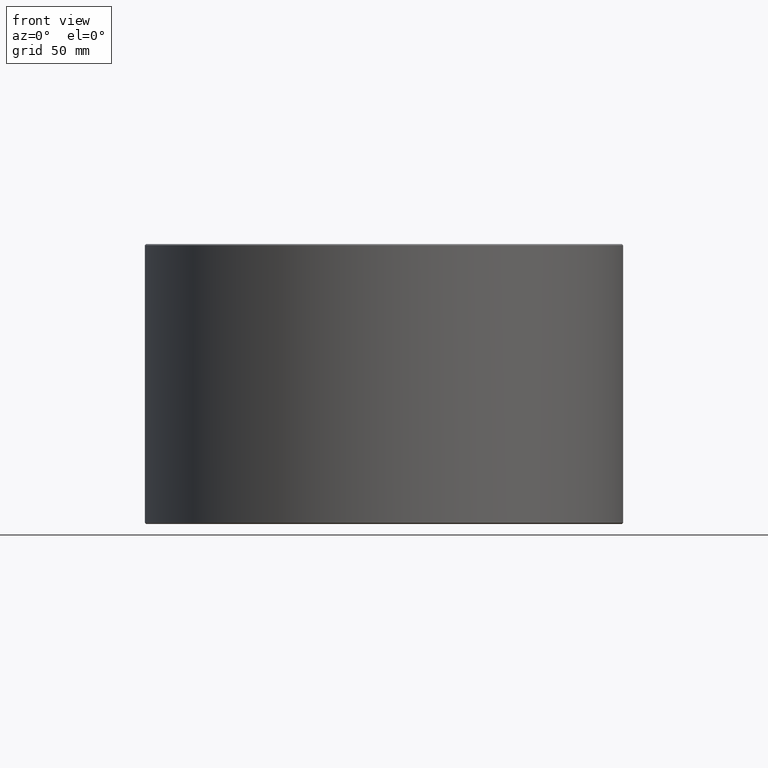
[diagram: clean part render]
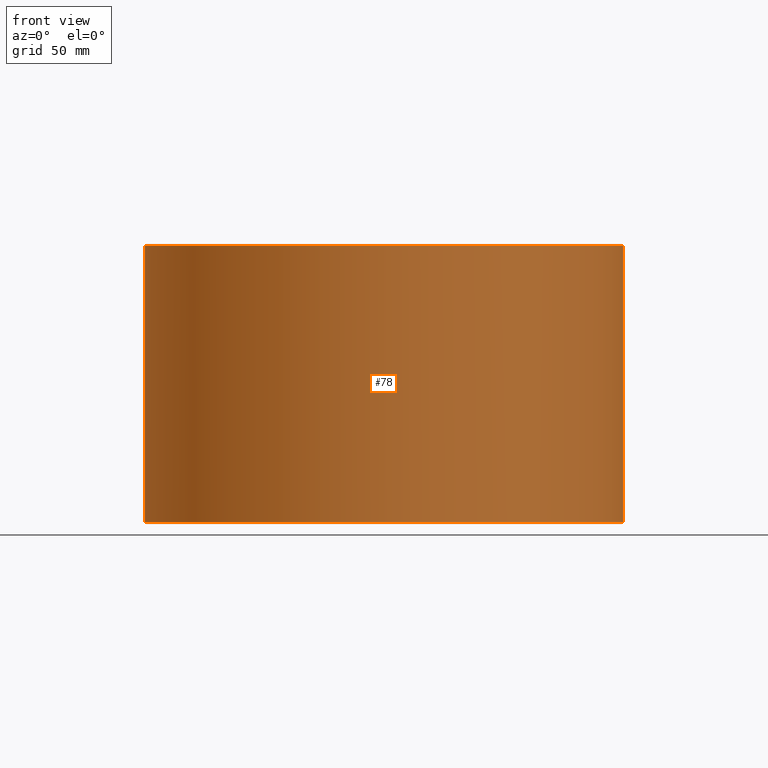
[diagram: same view with one face highlighted and labeled with its STEP entity id]
A machine part, front view. The second image highlights one B-rep face of the part: STEP entity #78.
In plain terms, the highlighted cylindrical surface (partial cylindrical patch) has radius 102.5 mm, axis along (0, -0, 1).
Its self-contained STEP definition (entity closure, byte-faithful):
#78=ADVANCED_FACE('',(#98),#99,.T.);
#98=FACE_OUTER_BOUND('',#130,.T.);
#99=CYLINDRICAL_SURFACE('',#131,102.5);
#130=EDGE_LOOP('',(#177,#178,#179,#180));
#131=AXIS2_PLACEMENT_3D('',#181,#182,#183);
#177=ORIENTED_EDGE('',*,*,#291,.F.);
#178=ORIENTED_EDGE('',*,*,#290,.F.);
#179=ORIENTED_EDGE('',*,*,#292,.F.);
#180=ORIENTED_EDGE('',*,*,#293,.T.);
#181=CARTESIAN_POINT('',(3.43859627909202E-014,-3.92324924818481E-014,60.0));
#182=DIRECTION('',(5.48707263966372E-016,-6.09939603923743E-016,1.0));
#183=DIRECTION('',(-1.0,-3.10522299689076E-016,5.48707263966372E-016));
#290=EDGE_CURVE('',#336,#332,#338,.T.);
#291=EDGE_CURVE('',#332,#339,#340,.T.);
#292=EDGE_CURVE('',#341,#336,#342,.T.);
#293=EDGE_CURVE('',#341,#339,#343,.T.);
#332=VERTEX_POINT('',#398);
#336=VERTEX_POINT('',#403);
#338=CIRCLE('',#406,102.5);
#339=VERTEX_POINT('',#407);
#340=LINE('',#408,#409);
#341=VERTEX_POINT('',#410);
#342=LINE('',#411,#412);
#343=CIRCLE('',#413,102.5);
#398=CARTESIAN_POINT('',(102.5,-5.62479928884409E-014,119.5));
#403=CARTESIAN_POINT('',(-102.5,-1.07237623265661E-013,119.5));
#406=AXIS2_PLACEMENT_3D('',#482,#483,#484);
#407=CARTESIAN_POINT('',(102.5,1.71170797645324E-014,0.499999999999953));
#408=CARTESIAN_POINT('',(102.5,-1.99565864549782E-014,59.9999999999999));
#409=VECTOR('',#485,1.0);
#410=CARTESIAN_POINT('',(-102.5,-3.5280120705911E-014,0.500000000000059));
#411=CARTESIAN_POINT('',(-102.5,-3.5280120705911E-014,0.500000000000059));
#412=VECTOR('',#486,10.0);
#413=AXIS2_PLACEMENT_3D('',#487,#488,#489);
#482=CARTESIAN_POINT('',(6.70340449969194E-014,-7.52112437617229E-014,119.5));
#483=DIRECTION('',(5.48707263966372E-016,-6.09939603923743E-016,1.0));
#484=DIRECTION('',(-1.0,-3.10522299689076E-016,5.48707263966372E-016));
#485=DIRECTION('',(-5.48707263966372E-016,6.09939603923743E-016,-1.0));
#486=DIRECTION('',(5.48707263966372E-016,-6.04684895460081E-016,1.0));
#487=CARTESIAN_POINT('',(1.73788058492098E-015,-2.1435181773482E-015,0.500000000000009));
#488=DIRECTION('',(5.48707263966372E-016,-6.09939603923743E-016,1.0));
#489=DIRECTION('',(-1.0,-3.10522299689076E-016,5.48707263966372E-016));